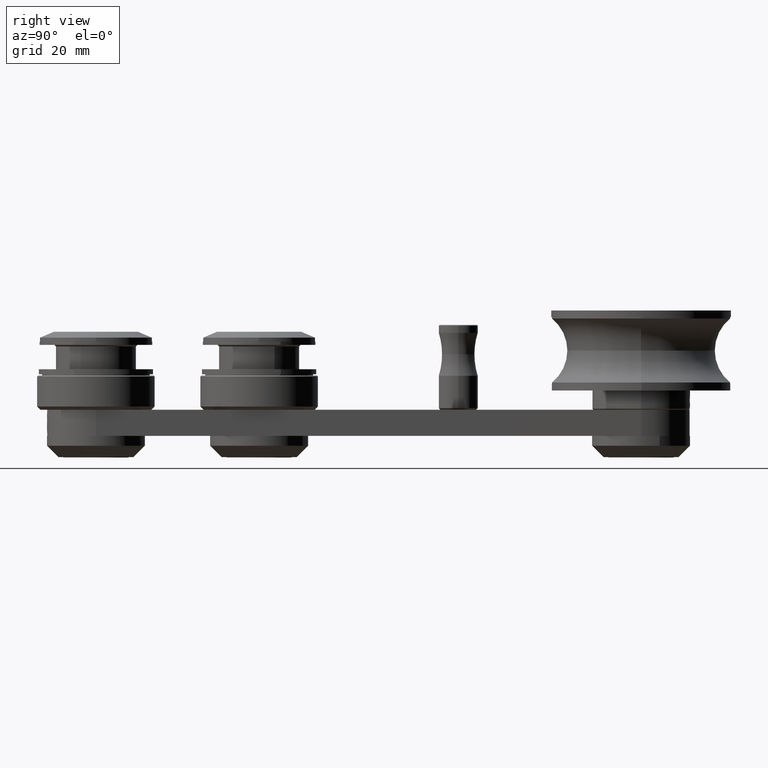
[diagram: clean part render]
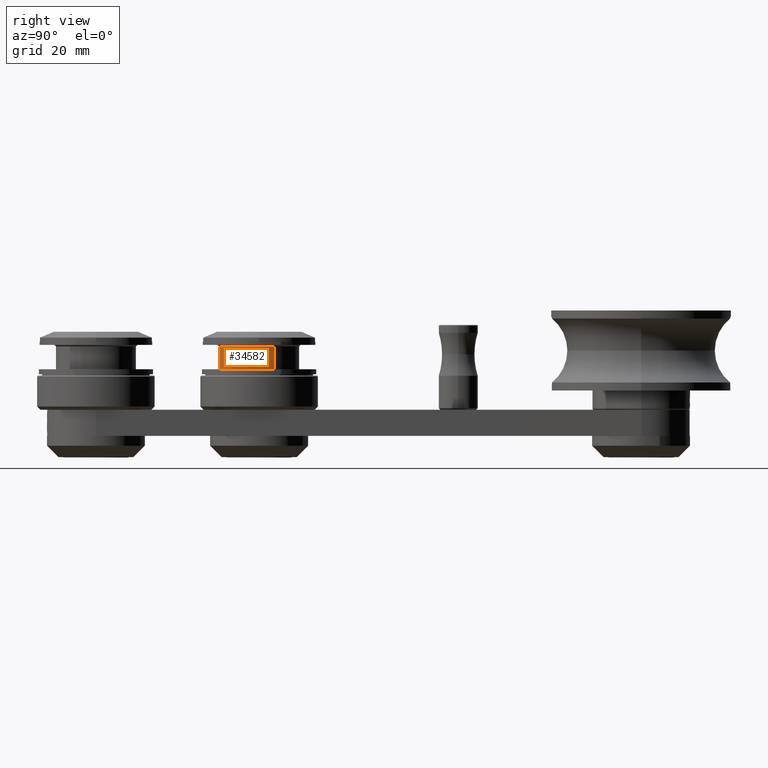
[diagram: same view with one face highlighted and labeled with its STEP entity id]
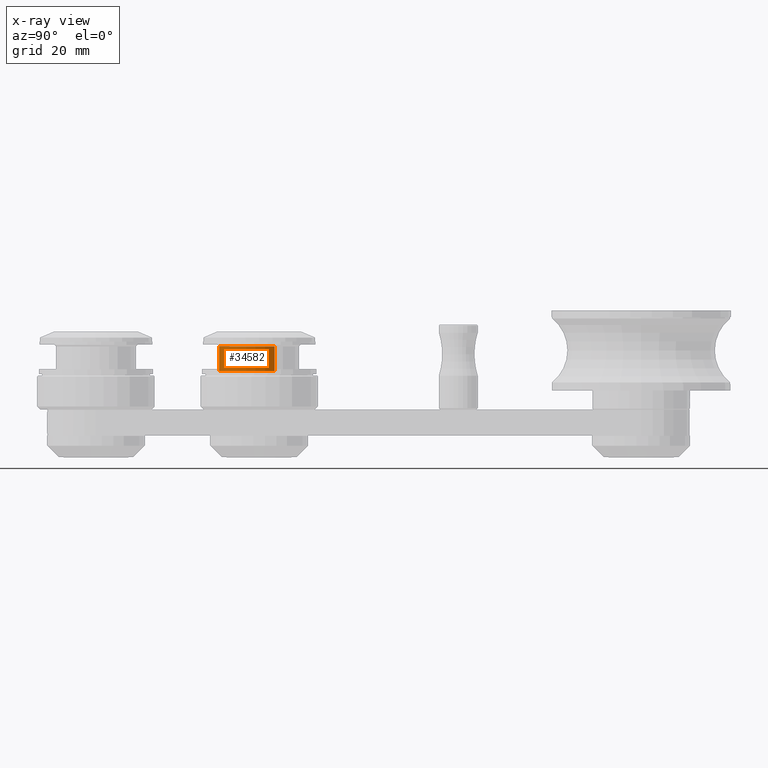
[diagram: x-ray of the same camera — body ghosted, the highlighted face saturated]
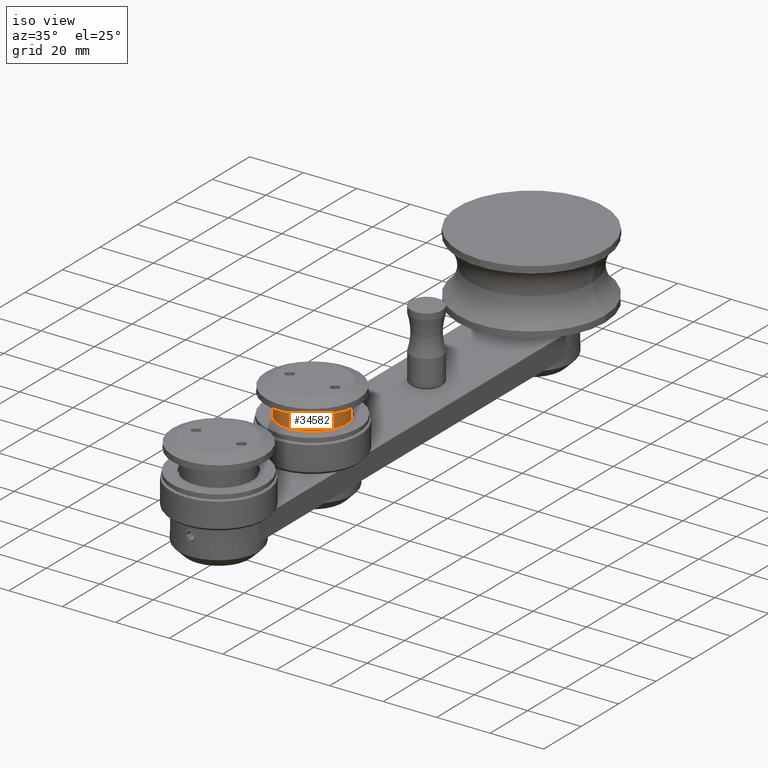
[diagram: same view with one face highlighted and labeled with its STEP entity id]
A machine part, right view. The second image highlights one B-rep face of the part: STEP entity #34582.
The next image is the same camera in x-ray: the body ghosted, the highlighted face saturated — about 0% of this face is hidden behind the body in this view.
A second angle (iso view) of the same face is appended — the face is thin or edge-on in the first view.
In plain terms, the highlighted cylindrical surface (partial cylindrical patch) has radius 12.25 mm, axis along (0, 0, 1).
Its self-contained STEP definition (entity closure, byte-faithful):
#1388 = EDGE_CURVE ( 'NONE', #18380, #34048, #27161, .T. ) ;
#3241 = VECTOR ( 'NONE', #16949, 1000.000000000000000 ) ;
#4605 = VERTEX_POINT ( 'NONE', #29514 ) ;
#5459 = DIRECTION ( 'NONE',  ( 1.000000000000000000, 0.0000000000000000000, 0.0000000000000000000 ) ) ;
#6072 = CARTESIAN_POINT ( 'NONE',  ( 0.0000000000000000000, 0.0000000000000000000, 1.499999999999995300 ) ) ;
#11325 = FACE_OUTER_BOUND ( 'NONE', #18032, .T. ) ;
#11400 = CIRCLE ( 'NONE', #23648, 12.25000000000000000 ) ;
#14070 = AXIS2_PLACEMENT_3D ( 'NONE', #16994, #24157, #20666 ) ;
#16861 = CARTESIAN_POINT ( 'NONE',  ( -12.25000000000000000, 0.0000000000000000000, 1.499999999999995300 ) ) ;
#16949 = DIRECTION ( 'NONE',  ( -0.0000000000000000000, -0.0000000000000000000, -1.000000000000000000 ) ) ;
#16994 = CARTESIAN_POINT ( 'NONE',  ( 0.0000000000000000000, 0.0000000000000000000, 0.0000000000000000000 ) ) ;
#17213 = ORIENTED_EDGE ( 'NONE', *, *, #1388, .T. ) ;
#17993 = DIRECTION ( 'NONE',  ( -0.0000000000000000000, -0.0000000000000000000, -1.000000000000000000 ) ) ;
#18032 = EDGE_LOOP ( 'NONE', ( #21992, #43914, #17213, #20387 ) ) ;
#18380 = VERTEX_POINT ( 'NONE', #45210 ) ;
#19832 = EDGE_CURVE ( 'NONE', #41040, #4605, #39928, .T. ) ;
#20387 = ORIENTED_EDGE ( 'NONE', *, *, #21931, .T. ) ;
#20666 = DIRECTION ( 'NONE',  ( -1.000000000000000000, 0.0000000000000000000, 0.0000000000000000000 ) ) ;
#21859 = EDGE_CURVE ( 'NONE', #41040, #18380, #11400, .T. ) ;
#21931 = EDGE_CURVE ( 'NONE', #34048, #4605, #23389, .T. ) ;
#21992 = ORIENTED_EDGE ( 'NONE', *, *, #19832, .F. ) ;
#22419 = CARTESIAN_POINT ( 'NONE',  ( 0.0000000000000000000, 0.0000000000000000000, 8.999999999999994700 ) ) ;
#23389 = CIRCLE ( 'NONE', #43033, 12.25000000000000000 ) ;
#23648 = AXIS2_PLACEMENT_3D ( 'NONE', #22419, #36802, #43539 ) ;
#24157 = DIRECTION ( 'NONE',  ( -0.0000000000000000000, -0.0000000000000000000, -1.000000000000000000 ) ) ;
#24844 = CARTESIAN_POINT ( 'NONE',  ( -12.25000000000000000, 0.0000000000000000000, 0.0000000000000000000 ) ) ;
#27161 = LINE ( 'NONE', #24844, #30450 ) ;
#27305 = CARTESIAN_POINT ( 'NONE',  ( 12.25000000000000000, 1.500192328955507700E-015, 0.0000000000000000000 ) ) ;
#29514 = CARTESIAN_POINT ( 'NONE',  ( 12.25000000000000000, 1.500192328955507700E-015, 1.499999999999995300 ) ) ;
#30450 = VECTOR ( 'NONE', #17993, 1000.000000000000000 ) ;
#34048 = VERTEX_POINT ( 'NONE', #16861 ) ;
#34582 = ADVANCED_FACE ( 'NONE', ( #11325 ), #36495, .T. ) ;
#36495 = CYLINDRICAL_SURFACE ( 'NONE', #14070, 12.25000000000000000 ) ;
#36802 = DIRECTION ( 'NONE',  ( -0.0000000000000000000, -0.0000000000000000000, -1.000000000000000000 ) ) ;
#36967 = DIRECTION ( 'NONE',  ( 0.0000000000000000000, 0.0000000000000000000, 1.000000000000000000 ) ) ;
#39928 = LINE ( 'NONE', #27305, #3241 ) ;
#41040 = VERTEX_POINT ( 'NONE', #42080 ) ;
#42080 = CARTESIAN_POINT ( 'NONE',  ( 12.25000000000000000, 1.500192328955507700E-015, 8.999999999999994700 ) ) ;
#43033 = AXIS2_PLACEMENT_3D ( 'NONE', #6072, #36967, #5459 ) ;
#43539 = DIRECTION ( 'NONE',  ( 1.000000000000000000, 0.0000000000000000000, 0.0000000000000000000 ) ) ;
#43914 = ORIENTED_EDGE ( 'NONE', *, *, #21859, .T. ) ;
#45210 = CARTESIAN_POINT ( 'NONE',  ( -12.25000000000000000, 0.0000000000000000000, 8.999999999999994700 ) ) ;